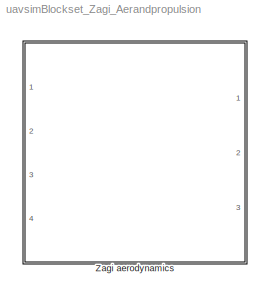
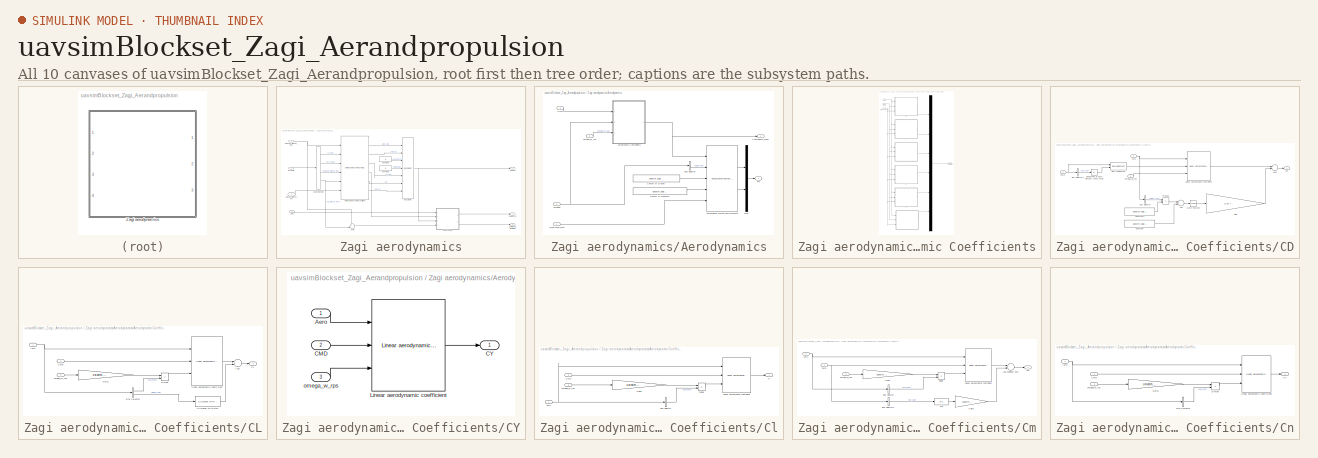
[diagram: thumbnail index - all 10 canvases of the model, root first then tree order]
MODEL uavsimBlockset_Zagi_Aerandpropulsion
KIND library
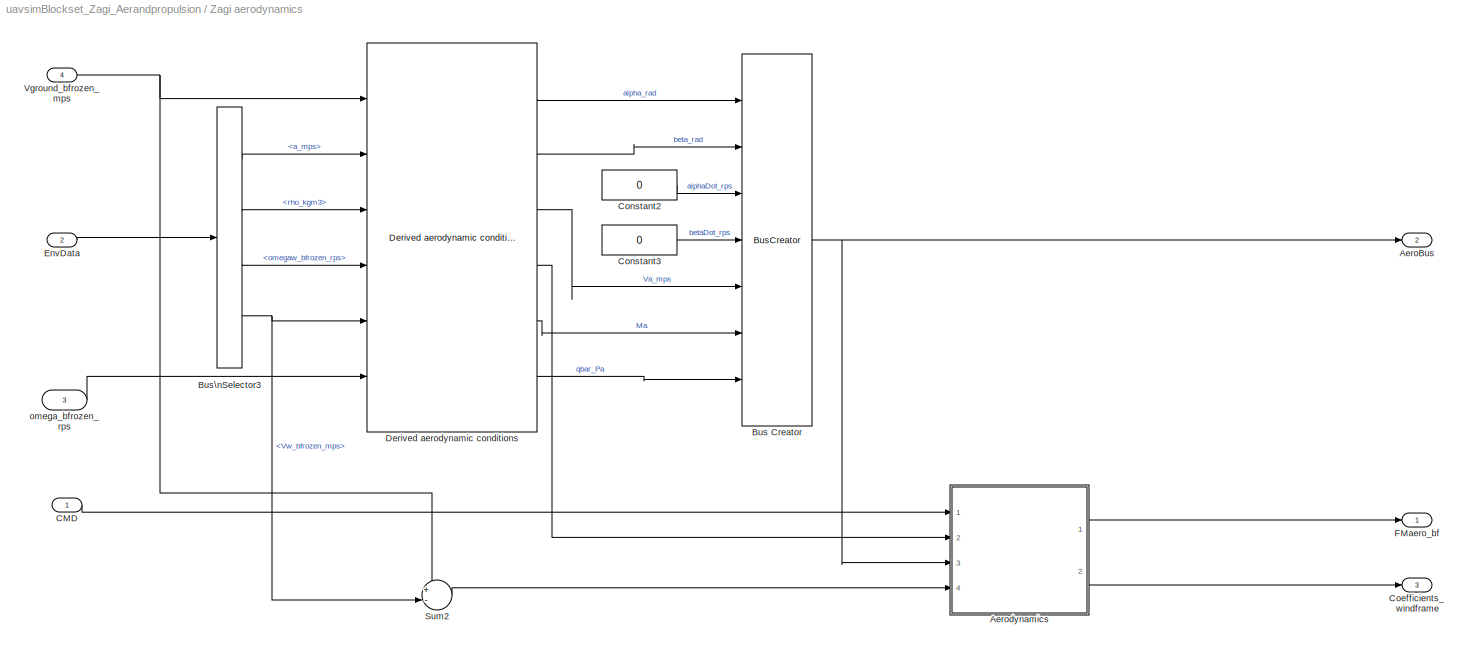
BLOCK [SubSystem] Zagi aerodynamics
  Ports = [4, 3]
  RequestExecContextInheritance = off
  SID = 4444
BLOCK [Outport] Zagi aerodynamics/AeroBus
  IconDisplay = Port number
  OutDataTypeStr = Bus: Aero
  Port = 2
  SID = 4539
BLOCK [SubSystem] Zagi aerodynamics/Aerodynamics
  Ports = [4, 2]
  RequestExecContextInheritance = off
  SID = 4449
BLOCK [Inport] Zagi aerodynamics/Aerodynamics/AeroBus
  IconDisplay = Port number
  OutDataTypeStr = Bus: Aero
  Port = 3
  SID = 4452
BLOCK [SubSystem] Zagi aerodynamics/Aerodynamics/Aerodynamic Coefficients
  Ports = [3, 1]
  RequestExecContextInheritance = off
  SID = 4454
BLOCK [Inport] Zagi aerodynamics/Aerodynamics/Aerodynamic Coefficients/Aero
  IconDisplay = Port number
  OutDataTypeStr = Bus: Aero
  Port = 2
  SID = 4456
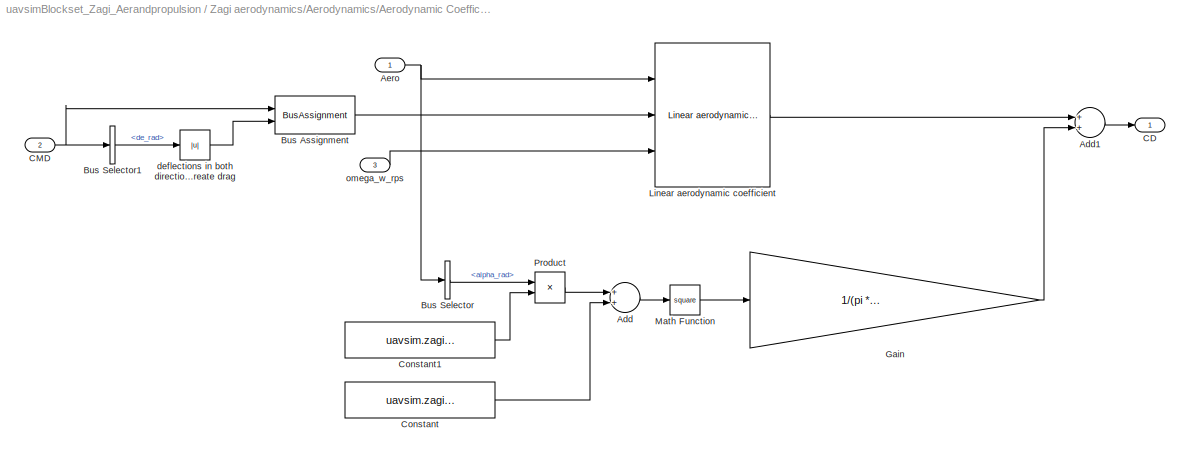
BLOCK [SubSystem] Zagi aerodynamics/Aerodynamics/Aerodynamic Coefficients/CD
  Ports = [3, 1]
  RequestExecContextInheritance = off
  SID = 4458
BLOCK [Sum] Zagi aerodynamics/Aerodynamics/Aerodynamic Coefficients/CD/Add
  InputSameDT = off
  OutDataTypeStr = Inherit: Inherit via internal rule
  Ports = [2, 1]
  SID = 4462
  SaturateOnIntegerOverflow = off
BLOCK [Sum] Zagi aerodynamics/Aerodynamics/Aerodynamic Coefficients/CD/Add1
  InputSameDT = off
  OutDataTypeStr = Inherit: Inherit via internal rule
  Ports = [2, 1]
  SID = 4463
  SaturateOnIntegerOverflow = off
BLOCK [Inport] Zagi aerodynamics/Aerodynamics/Aerodynamic Coefficients/CD/Aero
  IconDisplay = Port number
  OutDataTypeStr = Bus: Aero
  SID = 4459
BLOCK [BusAssignment] Zagi aerodynamics/Aerodynamics/Aerodynamic Coefficients/CD/Bus Assignment
  AssignedSignals = de_rad
  Ports = [2, 1]
  SID = 4464
BLOCK [BusSelector] Zagi aerodynamics/Aerodynamics/Aerodynamic Coefficients/CD/Bus Selector
  OutputSignals = alpha_rad
  Ports = [1, 1]
  SID = 4465
BLOCK [BusSelector] Zagi aerodynamics/Aerodynamics/Aerodynamic Coefficients/CD/Bus Selector1
  OutputSignals = de_rad
  Ports = [1, 1]
  SID = 4466
BLOCK [Outport] Zagi aerodynamics/Aerodynamics/Aerodynamic Coefficients/CD/CD
  IconDisplay = Port number
  SID = 4474
BLOCK [Inport] Zagi aerodynamics/Aerodynamics/Aerodynamic Coefficients/CD/CMD
  IconDisplay = Port number
  OutDataTypeStr = Bus: CMD
  Port = 2
  SID = 4460
BLOCK [Constant] Zagi aerodynamics/Aerodynamics/Aerodynamic Coefficients/CD/Constant
  SID = 4467
  Value = uavsim.zagi.CL_0
BLOCK [Constant] Zagi aerodynamics/Aerodynamics/Aerodynamic Coefficients/CD/Constant1
  SID = 4468
  Value = uavsim.zagi.CL_alpha
BLOCK [Gain] Zagi aerodynamics/Aerodynamics/Aerodynamic Coefficients/CD/Gain
  Gain = 1/(pi * uavsim.zagi.oswald * uavsim.zagi.AR)
  OutDataTypeStr = Inherit: Inherit via internal rule
  ParamDataTypeStr = Inherit: Inherit via internal rule
  SID = 4469
  SaturateOnIntegerOverflow = off
BLOCK [Reference] Zagi aerodynamics/Aerodynamics/Aerodynamic Coefficients/CD/Linear aerodynamic coefficient  REF=uavsimBlockset_LinearAerodynamicCoefficient/Linear aerodynamic coefficient
  Ports = [3, 1]
  SID = 4470
  SourceBlock = uavsimBlockset_LinearAerodynamicCoefficient/Linear aerodynamic coefficient
  mask_C_0 = uavsim.zagi.CD_0
  mask_C_Mach = 0
  mask_C_alpha = 0
  mask_C_alphaDot = 0
  mask_C_beta = 0
  mask_C_betaDot = 0
  mask_C_delta_a = 0
  mask_C_delta_e = uavsim.zagi.CD_de
  mask_C_delta_f = 0
  mask_C_delta_r = 0
  mask_C_p = 0
  mask_C_q = 0
  mask_C_r = 0
BLOCK [Math] Zagi aerodynamics/Aerodynamics/Aerodynamic Coefficients/CD/Math Function
  Operator = square
  Ports = [1, 1]
  SID = 4471
BLOCK [Product] Zagi aerodynamics/Aerodynamics/Aerodynamic Coefficients/CD/Product
  InputSameDT = off
  OutDataTypeStr = Inherit: Inherit via internal rule
  Ports = [2, 1]
  SID = 4472
  SaturateOnIntegerOverflow = off
BLOCK [Abs] Zagi aerodynamics/Aerodynamics/Aerodynamic Coefficients/CD/deflections in both directions\nalways create drag
  SID = 4473
  SaturateOnIntegerOverflow = off
BLOCK [Inport] Zagi aerodynamics/Aerodynamics/Aerodynamic Coefficients/CD/omega_w_rps
  IconDisplay = Port number
  Port = 3
  SID = 4461
BLOCK [SubSystem] Zagi aerodynamics/Aerodynamics/Aerodynamic Coefficients/CL
  Ports = [3, 1]
  RequestExecContextInheritance = off
  SID = 4475
BLOCK [Sum] Zagi aerodynamics/Aerodynamics/Aerodynamic Coefficients/CL/Add
  InputSameDT = off
  OutDataTypeStr = Inherit: Inherit via internal rule
  Ports = [2, 1]
  SID = 4479
  SaturateOnIntegerOverflow = off
BLOCK [Inport] Zagi aerodynamics/Aerodynamics/Aerodynamic Coefficients/CL/Aero
  IconDisplay = Port number
  OutDataTypeStr = Bus: Aero
  SID = 4476
BLOCK [BusSelector] Zagi aerodynamics/Aerodynamics/Aerodynamic Coefficients/CL/Bus Selector
  OutputSignals = Va_mps,alpha_rad
  Ports = [1, 2]
  SID = 4480
BLOCK [Outport] Zagi aerodynamics/Aerodynamics/Aerodynamic Coefficients/CL/CL
  IconDisplay = Port number
  SID = 4485
BLOCK [Reference] Zagi aerodynamics/Aerodynamics/Aerodynamic Coefficients/CL/CL(alpha) with stall  REF=uavsimBlockset_LiftCoefficientWithStall/CL(alpha) with stall
  Ports = [1, 1]
  SID = 4481
  SourceBlock = uavsimBlockset_LiftCoefficientWithStall/CL(alpha) with stall
  mask_CL_0 = uavsim.zagi.CL_0
  mask_CL_alpha = uavsim.zagi.CL_alpha
  mask_M = uavsim.zagi.stall.M
  mask_alpha0 = uavsim.zagi.alpha0
BLOCK [Inport] Zagi aerodynamics/Aerodynamics/Aerodynamic Coefficients/CL/CMD
  IconDisplay = Port number
  OutDataTypeStr = Bus: CMD
  Port = 2
  SID = 4477
BLOCK [Product] Zagi aerodynamics/Aerodynamics/Aerodynamic Coefficients/CL/Divide
  InputSameDT = off
  Inputs = */
  OutDataTypeStr = Inherit: Inherit via internal rule
  Ports = [2, 1]
  RndMeth = Floor
  SID = 4482
  SaturateOnIntegerOverflow = off
BLOCK [Gain] Zagi aerodynamics/Aerodynamics/Aerodynamic Coefficients/CL/Gain1
  Gain = uavsim.zagi.c / 2
  OutDataTypeStr = Inherit: Inherit via internal rule
  ParamDataTypeStr = Inherit: Inherit via internal rule
  SID = 4483
  SaturateOnIntegerOverflow = off
BLOCK [Reference] Zagi aerodynamics/Aerodynamics/Aerodynamic Coefficients/CL/Linear aerodynamic coefficient  REF=uavsimBlockset_LinearAerodynamicCoefficient/Linear aerodynamic coefficient
  Ports = [3, 1]
  SID = 4484
  SourceBlock = uavsimBlockset_LinearAerodynamicCoefficient/Linear aerodynamic coefficient
  mask_C_0 = 0
  mask_C_Mach = 0
  mask_C_alpha = 0
  mask_C_alphaDot = 0
  mask_C_beta = 0
  mask_C_betaDot = 0
  mask_C_delta_a = 0
  mask_C_delta_e = uavsim.zagi.CL_de
  mask_C_delta_f = 0
  mask_C_delta_r = 0
  mask_C_p = 0
  mask_C_q = uavsim.zagi.CL_q
  mask_C_r = 0
BLOCK [Inport] Zagi aerodynamics/Aerodynamics/Aerodynamic Coefficients/CL/omega_w_rps
  IconDisplay = Port number
  Port = 3
  SID = 4478
BLOCK [Inport] Zagi aerodynamics/Aerodynamics/Aerodynamic Coefficients/CMD
  IconDisplay = Port number
  SID = 4455
BLOCK [SubSystem] Zagi aerodynamics/Aerodynamics/Aerodynamic Coefficients/CY
  Ports = [3, 1]
  RequestExecContextInheritance = off
  SID = 4486
BLOCK [Inport] Zagi aerodynamics/Aerodynamics/Aerodynamic Coefficients/CY/Aero
  IconDisplay = Port number
  OutDataTypeStr = Bus: Aero
  SID = 4487
BLOCK [Inport] Zagi aerodynamics/Aerodynamics/Aerodynamic Coefficients/CY/CMD
  IconDisplay = Port number
  OutDataTypeStr = Bus: CMD
  Port = 2
  SID = 4488
BLOCK [Outport] Zagi aerodynamics/Aerodynamics/Aerodynamic Coefficients/CY/CY
  IconDisplay = Port number
  SID = 4491
BLOCK [Reference] Zagi aerodynamics/Aerodynamics/Aerodynamic Coefficients/CY/Linear aerodynamic coefficient  REF=uavsimBlockset_LinearAerodynamicCoefficient/Linear aerodynamic coefficient
  Ports = [3, 1]
  SID = 4490
  SourceBlock = uavsimBlockset_LinearAerodynamicCoefficient/Linear aerodynamic coefficient
  mask_C_0 = 0
  mask_C_Mach = 0
  mask_C_alpha = 0
  mask_C_alphaDot = 0
  mask_C_beta = uavsim.zagi.CY_beta
  mask_C_betaDot = 0
  mask_C_delta_a = 0
  mask_C_delta_e = 0
  mask_C_delta_f = 0
  mask_C_delta_r = 0
  mask_C_p = 0
  mask_C_q = 0
  mask_C_r = 0
BLOCK [Inport] Zagi aerodynamics/Aerodynamics/Aerodynamic Coefficients/CY/omega_w_rps
  IconDisplay = Port number
  Port = 3
  SID = 4489
BLOCK [SubSystem] Zagi aerodynamics/Aerodynamics/Aerodynamic Coefficients/Cl
  Ports = [3, 1]
  RequestExecContextInheritance = off
  SID = 4492
BLOCK [Inport] Zagi aerodynamics/Aerodynamics/Aerodynamic Coefficients/Cl/Aero
  IconDisplay = Port number
  OutDataTypeStr = Bus: Aero
  SID = 4493
BLOCK [BusSelector] Zagi aerodynamics/Aerodynamics/Aerodynamic Coefficients/Cl/Bus Selector
  OutputSignals = Va_mps
  Ports = [1, 1]
  SID = 4496
BLOCK [Inport] Zagi aerodynamics/Aerodynamics/Aerodynamic Coefficients/Cl/CMD
  IconDisplay = Port number
  OutDataTypeStr = Bus: CMD
  Port = 2
  SID = 4494
BLOCK [Outport] Zagi aerodynamics/Aerodynamics/Aerodynamic Coefficients/Cl/Cl
  IconDisplay = Port number
  SID = 4500
BLOCK [Product] Zagi aerodynamics/Aerodynamics/Aerodynamic Coefficients/Cl/Divide
  InputSameDT = off
  Inputs = */
  OutDataTypeStr = Inherit: Inherit via internal rule
  Ports = [2, 1]
  RndMeth = Floor
  SID = 4497
  SaturateOnIntegerOverflow = off
BLOCK [Gain] Zagi aerodynamics/Aerodynamics/Aerodynamic Coefficients/Cl/Gain1
  Gain = uavsim.zagi.b / 2
  OutDataTypeStr = Inherit: Inherit via internal rule
  ParamDataTypeStr = Inherit: Inherit via internal rule
  SID = 4498
  SaturateOnIntegerOverflow = off
BLOCK [Reference] Zagi aerodynamics/Aerodynamics/Aerodynamic Coefficients/Cl/Linear aerodynamic coefficient  REF=uavsimBlockset_LinearAerodynamicCoefficient/Linear aerodynamic coefficient
  Ports = [3, 1]
  SID = 4499
  SourceBlock = uavsimBlockset_LinearAerodynamicCoefficient/Linear aerodynamic coefficient
  mask_C_0 = 0
  mask_C_Mach = 0
  mask_C_alpha = 0
  mask_C_alphaDot = 0
  mask_C_beta = uavsim.zagi.Cl_beta
  mask_C_betaDot = 0
  mask_C_delta_a = uavsim.zagi.Cl_da
  mask_C_delta_e = 0
  mask_C_delta_f = 0
  mask_C_delta_r = 0
  mask_C_p = uavsim.zagi.Cl_p
  mask_C_q = 0
  mask_C_r = uavsim.zagi.Cl_r
BLOCK [Inport] Zagi aerodynamics/Aerodynamics/Aerodynamic Coefficients/Cl/omega_w_rps
  IconDisplay = Port number
  Port = 3
  SID = 4495
BLOCK [SubSystem] Zagi aerodynamics/Aerodynamics/Aerodynamic Coefficients/Cm
  Ports = [3, 1]
  RequestExecContextInheritance = off
  SID = 4501
BLOCK [Sum] Zagi aerodynamics/Aerodynamics/Aerodynamic Coefficients/Cm/Add nonlinear part
  InputSameDT = off
  OutDataTypeStr = Inherit: Inherit via internal rule
  Ports = [2, 1]
  SID = 4505
  SaturateOnIntegerOverflow = off
BLOCK [Inport] Zagi aerodynamics/Aerodynamics/Aerodynamic Coefficients/Cm/Aero
  IconDisplay = Port number
  OutDataTypeStr = Bus: Aero
  SID = 4502
BLOCK [BusSelector] Zagi aerodynamics/Aerodynamics/Aerodynamic Coefficients/Cm/Bus Selector
  OutputSignals = Va_mps
  Ports = [1, 1]
  SID = 4506
BLOCK [BusSelector] Zagi aerodynamics/Aerodynamics/Aerodynamic Coefficients/Cm/Bus Selector1
  OutputSignals = de_rad
  Ports = [1, 1]
  SID = 4507
BLOCK [Inport] Zagi aerodynamics/Aerodynamics/Aerodynamic Coefficients/Cm/CMD
  IconDisplay = Port number
  OutDataTypeStr = Bus: CMD
  Port = 2
  SID = 4503
BLOCK [Outport] Zagi aerodynamics/Aerodynamics/Aerodynamic Coefficients/Cm/Cm
  IconDisplay = Port number
  SID = 4513
BLOCK [Product] Zagi aerodynamics/Aerodynamics/Aerodynamic Coefficients/Cm/Divide
  InputSameDT = off
  Inputs = */
  OutDataTypeStr = Inherit: Inherit via internal rule
  Ports = [2, 1]
  RndMeth = Floor
  SID = 4508
  SaturateOnIntegerOverflow = off
BLOCK [Fcn] Zagi aerodynamics/Aerodynamics/Aerodynamic Coefficients/Cm/Fcn
  Expr = u^3
  SID = 4509
BLOCK [Gain] Zagi aerodynamics/Aerodynamics/Aerodynamic Coefficients/Cm/Gain1
  Gain = uavsim.zagi.c / 2
  OutDataTypeStr = Inherit: Inherit via internal rule
  ParamDataTypeStr = Inherit: Inherit via internal rule
  SID = 4510
  SaturateOnIntegerOverflow = off
BLOCK [Gain] Zagi aerodynamics/Aerodynamics/Aerodynamic Coefficients/Cm/Gain2
  Gain = uavsim.zagi.Cm_de3
  OutDataTypeStr = Inherit: Inherit via internal rule
  ParamDataTypeStr = Inherit: Inherit via internal rule
  SID = 4511
  SaturateOnIntegerOverflow = off
BLOCK [Reference] Zagi aerodynamics/Aerodynamics/Aerodynamic Coefficients/Cm/Linear aerodynamic coefficient  REF=uavsimBlockset_LinearAerodynamicCoefficient/Linear aerodynamic coefficient
  Ports = [3, 1]
  SID = 4512
  SourceBlock = uavsimBlockset_LinearAerodynamicCoefficient/Linear aerodynamic coefficient
  mask_C_0 = uavsim.zagi.Cm_0
  mask_C_Mach = 0
  mask_C_alpha = uavsim.zagi.Cm_alpha
  mask_C_alphaDot = 0
  mask_C_beta = 0
  mask_C_betaDot = 0
  mask_C_delta_a = 0
  mask_C_delta_e = uavsim.zagi.Cm_de
  mask_C_delta_f = 0
  mask_C_delta_r = 0
  mask_C_p = 0
  mask_C_q = uavsim.zagi.Cm_q
  mask_C_r = 0
BLOCK [Inport] Zagi aerodynamics/Aerodynamics/Aerodynamic Coefficients/Cm/omega_w_rps
  IconDisplay = Port number
  Port = 3
  SID = 4504
BLOCK [SubSystem] Zagi aerodynamics/Aerodynamics/Aerodynamic Coefficients/Cn
  Ports = [3, 1]
  RequestExecContextInheritance = off
  SID = 4514
BLOCK [Inport] Zagi aerodynamics/Aerodynamics/Aerodynamic Coefficients/Cn/Aero
  IconDisplay = Port number
  OutDataTypeStr = Bus: Aero
  SID = 4515
BLOCK [BusSelector] Zagi aerodynamics/Aerodynamics/Aerodynamic Coefficients/Cn/Bus Selector
  OutputSignals = Va_mps
  Ports = [1, 1]
  SID = 4518
BLOCK [Inport] Zagi aerodynamics/Aerodynamics/Aerodynamic Coefficients/Cn/CMD
  IconDisplay = Port number
  OutDataTypeStr = Bus: CMD
  Port = 2
  SID = 4516
BLOCK [Outport] Zagi aerodynamics/Aerodynamics/Aerodynamic Coefficients/Cn/Cn
  IconDisplay = Port number
  SID = 4522
BLOCK [Product] Zagi aerodynamics/Aerodynamics/Aerodynamic Coefficients/Cn/Divide
  InputSameDT = off
  Inputs = */
  OutDataTypeStr = Inherit: Inherit via internal rule
  Ports = [2, 1]
  RndMeth = Floor
  SID = 4519
  SaturateOnIntegerOverflow = off
BLOCK [Gain] Zagi aerodynamics/Aerodynamics/Aerodynamic Coefficients/Cn/Gain1
  Gain = uavsim.zagi.b / 2
  OutDataTypeStr = Inherit: Inherit via internal rule
  ParamDataTypeStr = Inherit: Inherit via internal rule
  SID = 4520
  SaturateOnIntegerOverflow = off
BLOCK [Reference] Zagi aerodynamics/Aerodynamics/Aerodynamic Coefficients/Cn/Linear aerodynamic coefficient  REF=uavsimBlockset_LinearAerodynamicCoefficient/Linear aerodynamic coefficient
  Ports = [3, 1]
  SID = 4521
  SourceBlock = uavsimBlockset_LinearAerodynamicCoefficient/Linear aerodynamic coefficient
  mask_C_0 = 0
  mask_C_Mach = 0
  mask_C_alpha = 0
  mask_C_alphaDot = 0
  mask_C_beta = uavsim.zagi.Cn_beta
  mask_C_betaDot = 0
  mask_C_delta_a = uavsim.zagi.Cn_da
  mask_C_delta_e = 0
  mask_C_delta_f = 0
  mask_C_delta_r = 0
  mask_C_p = uavsim.zagi.Cn_p
  mask_C_q = 0
  mask_C_r = uavsim.zagi.Cn_r
BLOCK [Inport] Zagi aerodynamics/Aerodynamics/Aerodynamic Coefficients/Cn/omega_w_rps
  IconDisplay = Port number
  Port = 3
  SID = 4517
BLOCK [Outport] Zagi aerodynamics/Aerodynamics/Aerodynamic Coefficients/CoeffStab
  IconDisplay = Port number
  SID = 4524
BLOCK [Mux] Zagi aerodynamics/Aerodynamics/Aerodynamic Coefficients/Mux2
  DisplayOption = bar
  Inputs = 6
  Ports = [6, 1]
  SID = 4523
BLOCK [Inport] Zagi aerodynamics/Aerodynamics/Aerodynamic Coefficients/omega_w_rps
  IconDisplay = Port number
  Port = 3
  SID = 4457
BLOCK [Reference] Zagi aerodynamics/Aerodynamics/Aerodynamic Forces and Moments   REF=aerolibadyn/Aerodynamic\nForces and Moments 
  Ports = [5, 2]
  S = uavsim.zagi.S
  SID = 4525
  SourceBlock = aerolibadyn/Aerodynamic\nForces and Moments
  SourceType = Aerodynamic Forces and Moments
  b = uavsim.zagi.b
  cbar = uavsim.zagi.c
  inputAxes = Wind
  outputForceAxes = Body
  outputMomentAxes = Body
BLOCK [BusSelector] Zagi aerodynamics/Aerodynamics/Bus Selector
  OutputSignals = qbar_Pa
  Ports = [1, 1]
  SID = 4526
BLOCK [Inport] Zagi aerodynamics/Aerodynamics/CMD
  IconDisplay = Port number
  OutDataTypeStr = Bus: CMD
  SID = 4450
BLOCK [Constant] Zagi aerodynamics/Aerodynamics/Center of Gravity
  SID = 4527
  SampleTime = 0
  Value = uavsim.zagi.centerOfGravity_b_m
BLOCK [Constant] Zagi aerodynamics/Aerodynamics/Center of Pressure
  SID = 4528
  SampleTime = 0
  Value = uavsim.zagi.aerodynamicCenter_b_m
BLOCK [Outport] Zagi aerodynamics/Aerodynamics/Coefficients_wind
  IconDisplay = Port number
  Port = 2
  SID = 4531
BLOCK [Outport] Zagi aerodynamics/Aerodynamics/FM
  IconDisplay = Port number
  SID = 4530
BLOCK [Mux] Zagi aerodynamics/Aerodynamics/Mux
  DisplayOption = bar
  Inputs = 2
  Ports = [2, 1]
  SID = 4529
BLOCK [Inport] Zagi aerodynamics/Aerodynamics/Va_bfrozen_mps
  IconDisplay = Port number
  Port = 4
  SID = 4453
BLOCK [Inport] Zagi aerodynamics/Aerodynamics/omega_w_rps
  IconDisplay = Port number
  Port = 2
  SID = 4451
BLOCK [BusCreator] Zagi aerodynamics/Bus Creator
  DisplayOption = bar
  Inputs = 7
  Ports = [7, 1]
  SID = 4533
BLOCK [BusSelector] Zagi aerodynamics/Bus\nSelector3
  OutputSignals = a_mps,rho_kgm3,omegaw_bfrozen_rps,Vw_bfrozen_mps
  Ports = [1, 4]
  SID = 4532
BLOCK [Inport] Zagi aerodynamics/CMD
  IconDisplay = Port number
  OutDataTypeStr = Bus: CMD
  SID = 4445
BLOCK [Outport] Zagi aerodynamics/Coefficients_windframe
  IconDisplay = Port number
  Port = 3
  SID = 4540
BLOCK [Constant] Zagi aerodynamics/Constant2
  SID = 4534
  Value = 0
BLOCK [Constant] Zagi aerodynamics/Constant3
  SID = 4535
  Value = 0
BLOCK [Reference] Zagi aerodynamics/Derived aerodynamic conditions  REF=uavsimBlockset_DerivedAerodynamicConditions/Derived aerodynamic conditions
  Ports = [6, 6]
  SID = 4536
  SourceBlock = uavsimBlockset_DerivedAerodynamicConditions/Derived aerodynamic conditions
  SourceType = SubSystem
BLOCK [Inport] Zagi aerodynamics/EnvData
  IconDisplay = Port number
  OutDataTypeStr = Bus: Environment
  Port = 2
  SID = 4446
BLOCK [Outport] Zagi aerodynamics/FMaero_bf
  IconDisplay = Port number
  SID = 4538
BLOCK [Sum] Zagi aerodynamics/Sum2
  IconShape = round
  Inputs = +-|
  Ports = [2, 1]
  SID = 4537
BLOCK [Inport] Zagi aerodynamics/Vground_bfrozen_mps
  IconDisplay = Port number
  Port = 4
  SID = 4448
BLOCK [Inport] Zagi aerodynamics/omega_bfrozen_rps
  IconDisplay = Port number
  Port = 3
  SID = 4447
NET Zagi aerodynamics/Aerodynamics/AeroBus:1 -> Zagi aerodynamics/Aerodynamics/Aerodynamic Coefficients:2, Zagi aerodynamics/Aerodynamics/Bus Selector:1
NET Zagi aerodynamics/Aerodynamics/Aerodynamic Coefficients/Aero:1 -> Zagi aerodynamics/Aerodynamics/Aerodynamic Coefficients/CD:1, Zagi aerodynamics/Aerodynamics/Aerodynamic Coefficients/CL:1, Zagi aerodynamics/Aerodynamics/Aerodynamic Coefficients/CY:1, Zagi aerodynamics/Aerodynamics/Aerodynamic Coefficients/Cl:1, Zagi aerodynamics/Aerodynamics/Aerodynamic Coefficients/Cm:1, Zagi aerodynamics/Aerodynamics/Aerodynamic Coefficients/Cn:1
LINE Zagi aerodynamics/Aerodynamics/Aerodynamic Coefficients/CD/Add1:1 -> Zagi aerodynamics/Aerodynamics/Aerodynamic Coefficients/CD/CD:1
LINE Zagi aerodynamics/Aerodynamics/Aerodynamic Coefficients/CD/Add:1 -> Zagi aerodynamics/Aerodynamics/Aerodynamic Coefficients/CD/Math Function:1
NET Zagi aerodynamics/Aerodynamics/Aerodynamic Coefficients/CD/Aero:1 -> Zagi aerodynamics/Aerodynamics/Aerodynamic Coefficients/CD/Bus Selector:1, Zagi aerodynamics/Aerodynamics/Aerodynamic Coefficients/CD/Linear aerodynamic coefficient:1
LINE Zagi aerodynamics/Aerodynamics/Aerodynamic Coefficients/CD/Bus Assignment:1 -> Zagi aerodynamics/Aerodynamics/Aerodynamic Coefficients/CD/Linear aerodynamic coefficient:2
LINE Zagi aerodynamics/Aerodynamics/Aerodynamic Coefficients/CD/Bus Selector1:1 -> Zagi aerodynamics/Aerodynamics/Aerodynamic Coefficients/CD/deflections in both directions\nalways create drag:1
LINE Zagi aerodynamics/Aerodynamics/Aerodynamic Coefficients/CD/Bus Selector:1 -> Zagi aerodynamics/Aerodynamics/Aerodynamic Coefficients/CD/Product:1
NET Zagi aerodynamics/Aerodynamics/Aerodynamic Coefficients/CD/CMD:1 -> Zagi aerodynamics/Aerodynamics/Aerodynamic Coefficients/CD/Bus Assignment:1, Zagi aerodynamics/Aerodynamics/Aerodynamic Coefficients/CD/Bus Selector1:1
LINE Zagi aerodynamics/Aerodynamics/Aerodynamic Coefficients/CD/Constant1:1 -> Zagi aerodynamics/Aerodynamics/Aerodynamic Coefficients/CD/Product:2
LINE Zagi aerodynamics/Aerodynamics/Aerodynamic Coefficients/CD/Constant:1 -> Zagi aerodynamics/Aerodynamics/Aerodynamic Coefficients/CD/Add:2
LINE Zagi aerodynamics/Aerodynamics/Aerodynamic Coefficients/CD/Gain:1 -> Zagi aerodynamics/Aerodynamics/Aerodynamic Coefficients/CD/Add1:2
LINE Zagi aerodynamics/Aerodynamics/Aerodynamic Coefficients/CD/Linear aerodynamic coefficient:1 -> Zagi aerodynamics/Aerodynamics/Aerodynamic Coefficients/CD/Add1:1
LINE Zagi aerodynamics/Aerodynamics/Aerodynamic Coefficients/CD/Math Function:1 -> Zagi aerodynamics/Aerodynamics/Aerodynamic Coefficients/CD/Gain:1
LINE Zagi aerodynamics/Aerodynamics/Aerodynamic Coefficients/CD/Product:1 -> Zagi aerodynamics/Aerodynamics/Aerodynamic Coefficients/CD/Add:1
LINE Zagi aerodynamics/Aerodynamics/Aerodynamic Coefficients/CD/deflections in both directions\nalways create drag:1 -> Zagi aerodynamics/Aerodynamics/Aerodynamic Coefficients/CD/Bus Assignment:2
LINE Zagi aerodynamics/Aerodynamics/Aerodynamic Coefficients/CD/omega_w_rps:1 -> Zagi aerodynamics/Aerodynamics/Aerodynamic Coefficients/CD/Linear aerodynamic coefficient:3
LINE Zagi aerodynamics/Aerodynamics/Aerodynamic Coefficients/CD:1 -> Zagi aerodynamics/Aerodynamics/Aerodynamic Coefficients/Mux2:1
LINE Zagi aerodynamics/Aerodynamics/Aerodynamic Coefficients/CL/Add:1 -> Zagi aerodynamics/Aerodynamics/Aerodynamic Coefficients/CL/CL:1
NET Zagi aerodynamics/Aerodynamics/Aerodynamic Coefficients/CL/Aero:1 -> Zagi aerodynamics/Aerodynamics/Aerodynamic Coefficients/CL/Bus Selector:1, Zagi aerodynamics/Aerodynamics/Aerodynamic Coefficients/CL/Linear aerodynamic coefficient:1
LINE Zagi aerodynamics/Aerodynamics/Aerodynamic Coefficients/CL/Bus Selector:1 -> Zagi aerodynamics/Aerodynamics/Aerodynamic Coefficients/CL/Divide:2
LINE Zagi aerodynamics/Aerodynamics/Aerodynamic Coefficients/CL/Bus Selector:2 -> Zagi aerodynamics/Aerodynamics/Aerodynamic Coefficients/CL/CL(alpha) with stall:1
LINE Zagi aerodynamics/Aerodynamics/Aerodynamic Coefficients/CL/CL(alpha) with stall:1 -> Zagi aerodynamics/Aerodynamics/Aerodynamic Coefficients/CL/Add:2
LINE Zagi aerodynamics/Aerodynamics/Aerodynamic Coefficients/CL/CMD:1 -> Zagi aerodynamics/Aerodynamics/Aerodynamic Coefficients/CL/Linear aerodynamic coefficient:2
LINE Zagi aerodynamics/Aerodynamics/Aerodynamic Coefficients/CL/Divide:1 -> Zagi aerodynamics/Aerodynamics/Aerodynamic Coefficients/CL/Linear aerodynamic coefficient:3
LINE Zagi aerodynamics/Aerodynamics/Aerodynamic Coefficients/CL/Gain1:1 -> Zagi aerodynamics/Aerodynamics/Aerodynamic Coefficients/CL/Divide:1
LINE Zagi aerodynamics/Aerodynamics/Aerodynamic Coefficients/CL/Linear aerodynamic coefficient:1 -> Zagi aerodynamics/Aerodynamics/Aerodynamic Coefficients/CL/Add:1
LINE Zagi aerodynamics/Aerodynamics/Aerodynamic Coefficients/CL/omega_w_rps:1 -> Zagi aerodynamics/Aerodynamics/Aerodynamic Coefficients/CL/Gain1:1
LINE Zagi aerodynamics/Aerodynamics/Aerodynamic Coefficients/CL:1 -> Zagi aerodynamics/Aerodynamics/Aerodynamic Coefficients/Mux2:3
NET Zagi aerodynamics/Aerodynamics/Aerodynamic Coefficients/CMD:1 -> Zagi aerodynamics/Aerodynamics/Aerodynamic Coefficients/CD:2, Zagi aerodynamics/Aerodynamics/Aerodynamic Coefficients/CL:2, Zagi aerodynamics/Aerodynamics/Aerodynamic Coefficients/CY:2, Zagi aerodynamics/Aerodynamics/Aerodynamic Coefficients/Cl:2, Zagi aerodynamics/Aerodynamics/Aerodynamic Coefficients/Cm:2, Zagi aerodynamics/Aerodynamics/Aerodynamic Coefficients/Cn:2
LINE Zagi aerodynamics/Aerodynamics/Aerodynamic Coefficients/CY/Aero:1 -> Zagi aerodynamics/Aerodynamics/Aerodynamic Coefficients/CY/Linear aerodynamic coefficient:1
LINE Zagi aerodynamics/Aerodynamics/Aerodynamic Coefficients/CY/CMD:1 -> Zagi aerodynamics/Aerodynamics/Aerodynamic Coefficients/CY/Linear aerodynamic coefficient:2
LINE Zagi aerodynamics/Aerodynamics/Aerodynamic Coefficients/CY/Linear aerodynamic coefficient:1 -> Zagi aerodynamics/Aerodynamics/Aerodynamic Coefficients/CY/CY:1
LINE Zagi aerodynamics/Aerodynamics/Aerodynamic Coefficients/CY/omega_w_rps:1 -> Zagi aerodynamics/Aerodynamics/Aerodynamic Coefficients/CY/Linear aerodynamic coefficient:3
LINE Zagi aerodynamics/Aerodynamics/Aerodynamic Coefficients/CY:1 -> Zagi aerodynamics/Aerodynamics/Aerodynamic Coefficients/Mux2:2
NET Zagi aerodynamics/Aerodynamics/Aerodynamic Coefficients/Cl/Aero:1 -> Zagi aerodynamics/Aerodynamics/Aerodynamic Coefficients/Cl/Bus Selector:1, Zagi aerodynamics/Aerodynamics/Aerodynamic Coefficients/Cl/Linear aerodynamic coefficient:1
LINE Zagi aerodynamics/Aerodynamics/Aerodynamic Coefficients/Cl/Bus Selector:1 -> Zagi aerodynamics/Aerodynamics/Aerodynamic Coefficients/Cl/Divide:2
LINE Zagi aerodynamics/Aerodynamics/Aerodynamic Coefficients/Cl/CMD:1 -> Zagi aerodynamics/Aerodynamics/Aerodynamic Coefficients/Cl/Linear aerodynamic coefficient:2
LINE Zagi aerodynamics/Aerodynamics/Aerodynamic Coefficients/Cl/Divide:1 -> Zagi aerodynamics/Aerodynamics/Aerodynamic Coefficients/Cl/Linear aerodynamic coefficient:3
LINE Zagi aerodynamics/Aerodynamics/Aerodynamic Coefficients/Cl/Gain1:1 -> Zagi aerodynamics/Aerodynamics/Aerodynamic Coefficients/Cl/Divide:1
LINE Zagi aerodynamics/Aerodynamics/Aerodynamic Coefficients/Cl/Linear aerodynamic coefficient:1 -> Zagi aerodynamics/Aerodynamics/Aerodynamic Coefficients/Cl/Cl:1
LINE Zagi aerodynamics/Aerodynamics/Aerodynamic Coefficients/Cl/omega_w_rps:1 -> Zagi aerodynamics/Aerodynamics/Aerodynamic Coefficients/Cl/Gain1:1
LINE Zagi aerodynamics/Aerodynamics/Aerodynamic Coefficients/Cl:1 -> Zagi aerodynamics/Aerodynamics/Aerodynamic Coefficients/Mux2:4
LINE Zagi aerodynamics/Aerodynamics/Aerodynamic Coefficients/Cm/Add nonlinear part:1 -> Zagi aerodynamics/Aerodynamics/Aerodynamic Coefficients/Cm/Cm:1
NET Zagi aerodynamics/Aerodynamics/Aerodynamic Coefficients/Cm/Aero:1 -> Zagi aerodynamics/Aerodynamics/Aerodynamic Coefficients/Cm/Bus Selector:1, Zagi aerodynamics/Aerodynamics/Aerodynamic Coefficients/Cm/Linear aerodynamic coefficient:1
LINE Zagi aerodynamics/Aerodynamics/Aerodynamic Coefficients/Cm/Bus Selector1:1 -> Zagi aerodynamics/Aerodynamics/Aerodynamic Coefficients/Cm/Fcn:1
LINE Zagi aerodynamics/Aerodynamics/Aerodynamic Coefficients/Cm/Bus Selector:1 -> Zagi aerodynamics/Aerodynamics/Aerodynamic Coefficients/Cm/Divide:2
NET Zagi aerodynamics/Aerodynamics/Aerodynamic Coefficients/Cm/CMD:1 -> Zagi aerodynamics/Aerodynamics/Aerodynamic Coefficients/Cm/Bus Selector1:1, Zagi aerodynamics/Aerodynamics/Aerodynamic Coefficients/Cm/Linear aerodynamic coefficient:2
LINE Zagi aerodynamics/Aerodynamics/Aerodynamic Coefficients/Cm/Divide:1 -> Zagi aerodynamics/Aerodynamics/Aerodynamic Coefficients/Cm/Linear aerodynamic coefficient:3
LINE Zagi aerodynamics/Aerodynamics/Aerodynamic Coefficients/Cm/Fcn:1 -> Zagi aerodynamics/Aerodynamics/Aerodynamic Coefficients/Cm/Gain2:1
LINE Zagi aerodynamics/Aerodynamics/Aerodynamic Coefficients/Cm/Gain1:1 -> Zagi aerodynamics/Aerodynamics/Aerodynamic Coefficients/Cm/Divide:1
LINE Zagi aerodynamics/Aerodynamics/Aerodynamic Coefficients/Cm/Gain2:1 -> Zagi aerodynamics/Aerodynamics/Aerodynamic Coefficients/Cm/Add nonlinear part:2
LINE Zagi aerodynamics/Aerodynamics/Aerodynamic Coefficients/Cm/Linear aerodynamic coefficient:1 -> Zagi aerodynamics/Aerodynamics/Aerodynamic Coefficients/Cm/Add nonlinear part:1
LINE Zagi aerodynamics/Aerodynamics/Aerodynamic Coefficients/Cm/omega_w_rps:1 -> Zagi aerodynamics/Aerodynamics/Aerodynamic Coefficients/Cm/Gain1:1
LINE Zagi aerodynamics/Aerodynamics/Aerodynamic Coefficients/Cm:1 -> Zagi aerodynamics/Aerodynamics/Aerodynamic Coefficients/Mux2:5
NET Zagi aerodynamics/Aerodynamics/Aerodynamic Coefficients/Cn/Aero:1 -> Zagi aerodynamics/Aerodynamics/Aerodynamic Coefficients/Cn/Bus Selector:1, Zagi aerodynamics/Aerodynamics/Aerodynamic Coefficients/Cn/Linear aerodynamic coefficient:1
LINE Zagi aerodynamics/Aerodynamics/Aerodynamic Coefficients/Cn/Bus Selector:1 -> Zagi aerodynamics/Aerodynamics/Aerodynamic Coefficients/Cn/Divide:2
LINE Zagi aerodynamics/Aerodynamics/Aerodynamic Coefficients/Cn/CMD:1 -> Zagi aerodynamics/Aerodynamics/Aerodynamic Coefficients/Cn/Linear aerodynamic coefficient:2
LINE Zagi aerodynamics/Aerodynamics/Aerodynamic Coefficients/Cn/Divide:1 -> Zagi aerodynamics/Aerodynamics/Aerodynamic Coefficients/Cn/Linear aerodynamic coefficient:3
LINE Zagi aerodynamics/Aerodynamics/Aerodynamic Coefficients/Cn/Gain1:1 -> Zagi aerodynamics/Aerodynamics/Aerodynamic Coefficients/Cn/Divide:1
LINE Zagi aerodynamics/Aerodynamics/Aerodynamic Coefficients/Cn/Linear aerodynamic coefficient:1 -> Zagi aerodynamics/Aerodynamics/Aerodynamic Coefficients/Cn/Cn:1
LINE Zagi aerodynamics/Aerodynamics/Aerodynamic Coefficients/Cn/omega_w_rps:1 -> Zagi aerodynamics/Aerodynamics/Aerodynamic Coefficients/Cn/Gain1:1
LINE Zagi aerodynamics/Aerodynamics/Aerodynamic Coefficients/Cn:1 -> Zagi aerodynamics/Aerodynamics/Aerodynamic Coefficients/Mux2:6
LINE Zagi aerodynamics/Aerodynamics/Aerodynamic Coefficients/Mux2:1 -> Zagi aerodynamics/Aerodynamics/Aerodynamic Coefficients/CoeffStab:1
NET Zagi aerodynamics/Aerodynamics/Aerodynamic Coefficients/omega_w_rps:1 -> Zagi aerodynamics/Aerodynamics/Aerodynamic Coefficients/CD:3, Zagi aerodynamics/Aerodynamics/Aerodynamic Coefficients/CL:3, Zagi aerodynamics/Aerodynamics/Aerodynamic Coefficients/CY:3, Zagi aerodynamics/Aerodynamics/Aerodynamic Coefficients/Cl:3, Zagi aerodynamics/Aerodynamics/Aerodynamic Coefficients/Cm:3, Zagi aerodynamics/Aerodynamics/Aerodynamic Coefficients/Cn:3
NET Zagi aerodynamics/Aerodynamics/Aerodynamic Coefficients:1 -> Zagi aerodynamics/Aerodynamics/Aerodynamic Forces and Moments :1, Zagi aerodynamics/Aerodynamics/Coefficients_wind:1
LINE Zagi aerodynamics/Aerodynamics/Aerodynamic Forces and Moments :1 -> Zagi aerodynamics/Aerodynamics/Mux:1
LINE Zagi aerodynamics/Aerodynamics/Aerodynamic Forces and Moments :2 -> Zagi aerodynamics/Aerodynamics/Mux:2
LINE Zagi aerodynamics/Aerodynamics/Bus Selector:1 -> Zagi aerodynamics/Aerodynamics/Aerodynamic Forces and Moments :2
LINE Zagi aerodynamics/Aerodynamics/CMD:1 -> Zagi aerodynamics/Aerodynamics/Aerodynamic Coefficients:1
LINE Zagi aerodynamics/Aerodynamics/Center of Gravity:1 -> Zagi aerodynamics/Aerodynamics/Aerodynamic Forces and Moments :3
LINE Zagi aerodynamics/Aerodynamics/Center of Pressure:1 -> Zagi aerodynamics/Aerodynamics/Aerodynamic Forces and Moments :4
LINE Zagi aerodynamics/Aerodynamics/Mux:1 -> Zagi aerodynamics/Aerodynamics/FM:1
LINE Zagi aerodynamics/Aerodynamics/Va_bfrozen_mps:1 -> Zagi aerodynamics/Aerodynamics/Aerodynamic Forces and Moments :5
LINE Zagi aerodynamics/Aerodynamics/omega_w_rps:1 -> Zagi aerodynamics/Aerodynamics/Aerodynamic Coefficients:3
LINE Zagi aerodynamics/Aerodynamics:1 -> Zagi aerodynamics/FMaero_bf:1
LINE Zagi aerodynamics/Aerodynamics:2 -> Zagi aerodynamics/Coefficients_windframe:1
NET Zagi aerodynamics/Bus Creator:1 -> Zagi aerodynamics/AeroBus:1, Zagi aerodynamics/Aerodynamics:3
LINE Zagi aerodynamics/Bus\nSelector3:1 -> Zagi aerodynamics/Derived aerodynamic conditions:2
LINE Zagi aerodynamics/Bus\nSelector3:2 -> Zagi aerodynamics/Derived aerodynamic conditions:3
LINE Zagi aerodynamics/Bus\nSelector3:3 -> Zagi aerodynamics/Derived aerodynamic conditions:4
NET Zagi aerodynamics/Bus\nSelector3:4 -> Zagi aerodynamics/Derived aerodynamic conditions:5, Zagi aerodynamics/Sum2:2
LINE Zagi aerodynamics/CMD:1 -> Zagi aerodynamics/Aerodynamics:1
LINE Zagi aerodynamics/Constant2:1 -> Zagi aerodynamics/Bus Creator:3
LINE Zagi aerodynamics/Constant3:1 -> Zagi aerodynamics/Bus Creator:4
LINE Zagi aerodynamics/Derived aerodynamic conditions:1 -> Zagi aerodynamics/Bus Creator:1
LINE Zagi aerodynamics/Derived aerodynamic conditions:2 -> Zagi aerodynamics/Bus Creator:2
LINE Zagi aerodynamics/Derived aerodynamic conditions:3 -> Zagi aerodynamics/Bus Creator:5
LINE Zagi aerodynamics/Derived aerodynamic conditions:4 -> Zagi aerodynamics/Aerodynamics:2
LINE Zagi aerodynamics/Derived aerodynamic conditions:5 -> Zagi aerodynamics/Bus Creator:6
LINE Zagi aerodynamics/Derived aerodynamic conditions:6 -> Zagi aerodynamics/Bus Creator:7
LINE Zagi aerodynamics/EnvData:1 -> Zagi aerodynamics/Bus\nSelector3:1
LINE Zagi aerodynamics/Sum2:1 -> Zagi aerodynamics/Aerodynamics:4
NET Zagi aerodynamics/Vground_bfrozen_mps:1 -> Zagi aerodynamics/Derived aerodynamic conditions:1, Zagi aerodynamics/Sum2:1
LINE Zagi aerodynamics/omega_bfrozen_rps:1 -> Zagi aerodynamics/Derived aerodynamic conditions:6
note: NET lines group one-source signal fan-out (src -> all destinations, sorted); 1:1 wires keep LINE
